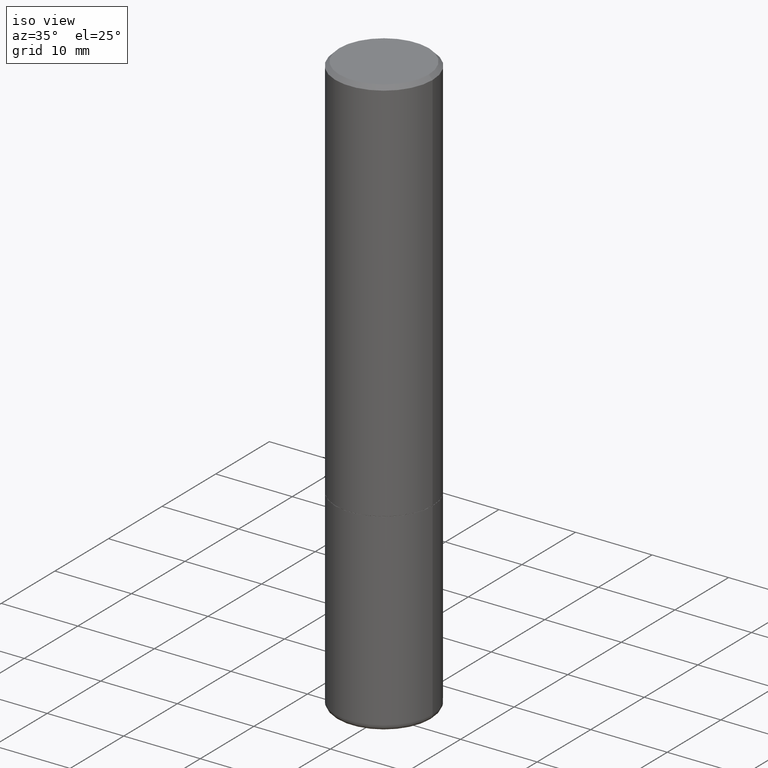
[diagram: clean part render]
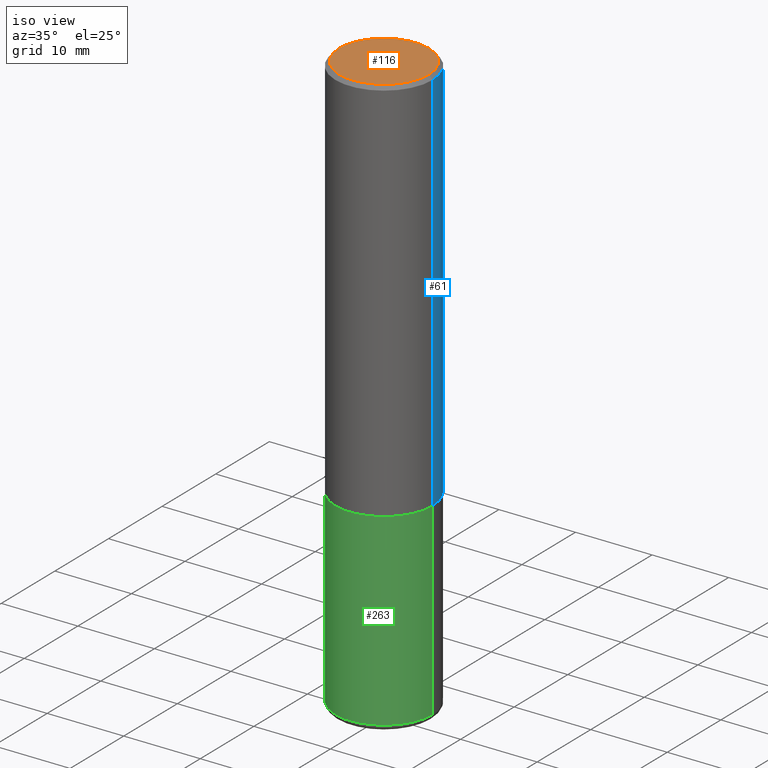
[diagram: same view with three faces highlighted in distinct colors, each labeled with its STEP entity id]
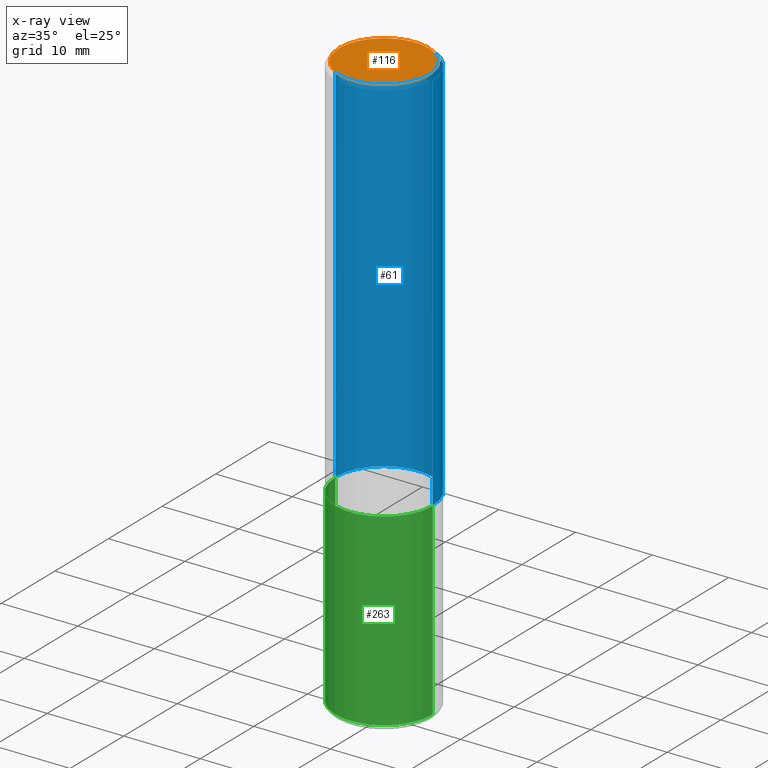
[diagram: x-ray of the same camera — body ghosted, the three highlighted faces saturated]
A machine part, iso view with three faces highlighted in distinct colors.
The next image is the same camera in x-ray (body ghosted, the three faces saturated) — at least one of them is partly hidden behind the body in this view.
Their STEP definitions:

[orange] entity #116 — the highlighted planar face has unit normal (0, -0, -1).
#11 = DIRECTION ( 'NONE',  ( -2.445468806185136597E-29, 3.491481338843145583E-15, 1.000000000000000000 ) ) ;
#14 = AXIS2_PLACEMENT_3D ( 'NONE', #366, #11, #243 ) ;
#18 = CARTESIAN_POINT ( 'NONE',  ( -0.2299999999999995381, 1.640996229256271139E-15, 4.268512490100296524E-16 ) ) ;
#24 = EDGE_CURVE ( 'NONE', #300, #229, #238, .T. ) ;
#98 = DIRECTION ( 'NONE',  ( -2.445468806185136597E-29, 3.491481338843145583E-15, 1.000000000000000000 ) ) ;
#111 = AXIS2_PLACEMENT_3D ( 'NONE', #128, #98, #250 ) ;
#116 = ADVANCED_FACE ( 'NONE', ( #316 ), #376, .F. ) ;
#125 = CARTESIAN_POINT ( 'NONE',  ( 1.606081415867837912E-15, 0.2299999999999995381, -5.896150834289013687E-16 ) ) ;
#128 = CARTESIAN_POINT ( 'NONE',  ( -1.043851414335219407E-44, 1.490343170380446839E-30, 4.268512490100409923E-16 ) ) ;
#170 = CARTESIAN_POINT ( 'NONE',  ( 0.2299999999999995381, -1.681434332853596842E-15, 4.268512490100525294E-16 ) ) ;
#185 = EDGE_CURVE ( 'NONE', #229, #300, #202, .T. ) ;
#192 = ORIENTED_EDGE ( 'NONE', *, *, #24, .T. ) ;
#197 = ORIENTED_EDGE ( 'NONE', *, *, #185, .T. ) ;
#202 = CIRCLE ( 'NONE', #111, 0.2299999999999995381 ) ;
#224 = DIRECTION ( 'NONE',  ( -1.000000000000000000, 6.982962677686265922E-15, -4.876176775795935793E-29 ) ) ;
#229 = VERTEX_POINT ( 'NONE', #18 ) ;
#238 = CIRCLE ( 'NONE', #14, 0.2299999999999995381 ) ;
#243 = DIRECTION ( 'NONE',  ( 1.000000000000000000, -6.982962677686266711E-15, 4.879110437680785527E-29 ) ) ;
#250 = DIRECTION ( 'NONE',  ( 1.000000000000000000, -6.982962677686266711E-15, 4.879110437680785527E-29 ) ) ;
#290 = AXIS2_PLACEMENT_3D ( 'NONE', #125, #375, #224 ) ;
#300 = VERTEX_POINT ( 'NONE', #170 ) ;
#316 = FACE_OUTER_BOUND ( 'NONE', #356, .T. ) ;
#356 = EDGE_LOOP ( 'NONE', ( #197, #192 ) ) ;
#366 = CARTESIAN_POINT ( 'NONE',  ( -1.043851414335219407E-44, 1.490343170380446839E-30, 4.268512490100409923E-16 ) ) ;
#375 = DIRECTION ( 'NONE',  ( 2.438088387897960049E-29, -3.491481338843145188E-15, -1.000000000000000000 ) ) ;
#376 = PLANE ( 'NONE',  #290 ) ;

[blue] entity #61 — the highlighted cylindrical surface (partial cylindrical patch) has radius 6.35 mm, axis along (-0, 0, 1).
#5 = EDGE_CURVE ( 'NONE', #39, #134, #55, .T. ) ;
#8 = LINE ( 'NONE', #270, #181 ) ;
#16 = DIRECTION ( 'NONE',  ( 1.000000000000000000, -6.982962677686268288E-15, 0.000000000000000000 ) ) ;
#25 = EDGE_CURVE ( 'NONE', #39, #113, #370, .T. ) ;
#39 = VERTEX_POINT ( 'NONE', #146 ) ;
#55 = CIRCLE ( 'NONE', #213, 0.2500000000000002220 ) ;
#61 = ADVANCED_FACE ( 'NONE', ( #400 ), #369, .T. ) ;
#73 = AXIS2_PLACEMENT_3D ( 'NONE', #120, #84, #338 ) ;
#84 = DIRECTION ( 'NONE',  ( -2.445468806185136597E-29, 3.491481338843145583E-15, 1.000000000000000000 ) ) ;
#85 = CARTESIAN_POINT ( 'NONE',  ( 4.888492143564088712E-29, -6.979471196347448158E-15, -1.999000000000000110 ) ) ;
#106 = ORIENTED_EDGE ( 'NONE', *, *, #241, .F. ) ;
#113 = VERTEX_POINT ( 'NONE', #180 ) ;
#120 = CARTESIAN_POINT ( 'NONE',  ( 0.000000000000000000, 0.000000000000000000, 0.000000000000000000 ) ) ;
#130 = CARTESIAN_POINT ( 'NONE',  ( 4.890937612370296805E-31, -6.982962677686323656E-17, -0.02000000000000009409 ) ) ;
#134 = VERTEX_POINT ( 'NONE', #410 ) ;
#136 = VECTOR ( 'NONE', #234, 39.37007874015748143 ) ;
#146 = CARTESIAN_POINT ( 'NONE',  ( 0.2500000000000002220, -8.725211865769017202E-15, -1.999000000000000110 ) ) ;
#153 = DIRECTION ( 'NONE',  ( 1.000000000000000000, -6.982962677686266711E-15, 0.000000000000000000 ) ) ;
#180 = CARTESIAN_POINT ( 'NONE',  ( 0.2499999999999999722, -1.784954126219746189E-15, -0.02000000000000009409 ) ) ;
#181 = VECTOR ( 'NONE', #392, 39.37007874015748143 ) ;
#213 = AXIS2_PLACEMENT_3D ( 'NONE', #85, #276, #16 ) ;
#227 = EDGE_LOOP ( 'NONE', ( #232, #262, #106, #394 ) ) ;
#232 = ORIENTED_EDGE ( 'NONE', *, *, #5, .T. ) ;
#234 = DIRECTION ( 'NONE',  ( -2.445468806185136877E-29, 3.491481338843145188E-15, 1.000000000000000000 ) ) ;
#241 = EDGE_CURVE ( 'NONE', #113, #324, #418, .T. ) ;
#262 = ORIENTED_EDGE ( 'NONE', *, *, #358, .T. ) ;
#270 = CARTESIAN_POINT ( 'NONE',  ( -0.2500000000000001110, 1.776356839400251254E-15, -1.229733772563727006E-29 ) ) ;
#276 = DIRECTION ( 'NONE',  ( -2.445468806185136597E-29, 3.491481338843145583E-15, 1.000000000000000000 ) ) ;
#278 = DIRECTION ( 'NONE',  ( -2.445468806185136597E-29, 3.491481338843145583E-15, 1.000000000000000000 ) ) ;
#295 = AXIS2_PLACEMENT_3D ( 'NONE', #130, #278, #153 ) ;
#324 = VERTEX_POINT ( 'NONE', #393 ) ;
#338 = DIRECTION ( 'NONE',  ( 1.000000000000000000, -6.982962677686266711E-15, 4.876176775795935793E-29 ) ) ;
#358 = EDGE_CURVE ( 'NONE', #134, #324, #8, .T. ) ;
#364 = CARTESIAN_POINT ( 'NONE',  ( 0.2500000000000001110, -1.745740669421567467E-15, 1.219044193948984509E-29 ) ) ;
#369 = CYLINDRICAL_SURFACE ( 'NONE', #73, 0.2500000000000001110 ) ;
#370 = LINE ( 'NONE', #364, #136 ) ;
#392 = DIRECTION ( 'NONE',  ( -2.445468806185136877E-29, 3.491481338843145188E-15, 1.000000000000000000 ) ) ;
#393 = CARTESIAN_POINT ( 'NONE',  ( -0.2499999999999999722, 1.675911042644703182E-15, -0.02000000000000009409 ) ) ;
#394 = ORIENTED_EDGE ( 'NONE', *, *, #25, .F. ) ;
#400 = FACE_OUTER_BOUND ( 'NONE', #227, .T. ) ;
#410 = CARTESIAN_POINT ( 'NONE',  ( -0.2500000000000002220, -1.748293572161903489E-15, -1.999000000000000110 ) ) ;
#418 = CIRCLE ( 'NONE', #295, 0.2499999999999999722 ) ;

[green] entity #263 — the highlighted cylindrical surface (partial cylindrical patch) has radius 6.35 mm, axis along (-0, 0, 1).
#3 = VERTEX_POINT ( 'NONE', #41 ) ;
#6 = AXIS2_PLACEMENT_3D ( 'NONE', #415, #68, #102 ) ;
#7 = CARTESIAN_POINT ( 'NONE',  ( 4.890937612370273754E-29, -6.982962677686291954E-15, -2.000000000000000444 ) ) ;
#19 = DIRECTION ( 'NONE',  ( -2.445468806185136877E-29, 3.491481338843145188E-15, 1.000000000000000000 ) ) ;
#30 = EDGE_CURVE ( 'NONE', #165, #3, #178, .T. ) ;
#38 = CYLINDRICAL_SURFACE ( 'NONE', #6, 0.2500000000000000000 ) ;
#41 = CARTESIAN_POINT ( 'NONE',  ( 0.2499999999999998612, -1.211544024578571124E-14, -2.970000000000000195 ) ) ;
#44 = EDGE_CURVE ( 'NONE', #390, #359, #142, .T. ) ;
#68 = DIRECTION ( 'NONE',  ( -2.445468806185136597E-29, 3.491481338843145583E-15, 1.000000000000000000 ) ) ;
#80 = CARTESIAN_POINT ( 'NONE',  ( 0.2500000000000000000, -8.728703347107858632E-15, -2.000000000000000444 ) ) ;
#81 = AXIS2_PLACEMENT_3D ( 'NONE', #7, #269, #206 ) ;
#83 = CARTESIAN_POINT ( 'NONE',  ( 7.263042354369856275E-29, -1.036969957636414298E-14, -2.970000000000000195 ) ) ;
#88 = DIRECTION ( 'NONE',  ( 1.000000000000000000, -6.982962677686269077E-15, 0.000000000000000000 ) ) ;
#102 = DIRECTION ( 'NONE',  ( 1.000000000000000000, -6.982962677686266711E-15, 4.876176775795935793E-29 ) ) ;
#104 = ORIENTED_EDGE ( 'NONE', *, *, #245, .F. ) ;
#115 = DIRECTION ( 'NONE',  ( -2.445468806185136877E-29, 3.491481338843145188E-15, 1.000000000000000000 ) ) ;
#142 = CIRCLE ( 'NONE', #81, 0.2500000000000000000 ) ;
#152 = AXIS2_PLACEMENT_3D ( 'NONE', #83, #372, #88 ) ;
#165 = VERTEX_POINT ( 'NONE', #287 ) ;
#178 = CIRCLE ( 'NONE', #152, 0.2500000000000000555 ) ;
#199 = ORIENTED_EDGE ( 'NONE', *, *, #30, .T. ) ;
#204 = CARTESIAN_POINT ( 'NONE',  ( -0.2500000000000000000, -6.899974287624967004E-15, -2.000000000000000444 ) ) ;
#206 = DIRECTION ( 'NONE',  ( 1.000000000000000000, -6.982962677686266711E-15, 0.000000000000000000 ) ) ;
#218 = CARTESIAN_POINT ( 'NONE',  ( -0.2500000000000000000, 1.776356839400250465E-15, -1.229733772563726445E-29 ) ) ;
#220 = VECTOR ( 'NONE', #19, 39.37007874015748143 ) ;
#245 = EDGE_CURVE ( 'NONE', #165, #390, #246, .T. ) ;
#246 = LINE ( 'NONE', #218, #220 ) ;
#254 = ORIENTED_EDGE ( 'NONE', *, *, #44, .F. ) ;
#263 = ADVANCED_FACE ( 'NONE', ( #329 ), #38, .T. ) ;
#269 = DIRECTION ( 'NONE',  ( -2.445468806185136597E-29, 3.491481338843145583E-15, 1.000000000000000000 ) ) ;
#280 = VECTOR ( 'NONE', #115, 39.37007874015748143 ) ;
#287 = CARTESIAN_POINT ( 'NONE',  ( -0.2499999999999998612, -8.593342736963892519E-15, -2.970000000000000195 ) ) ;
#329 = FACE_OUTER_BOUND ( 'NONE', #381, .T. ) ;
#343 = EDGE_CURVE ( 'NONE', #3, #359, #391, .T. ) ;
#359 = VERTEX_POINT ( 'NONE', #80 ) ;
#362 = ORIENTED_EDGE ( 'NONE', *, *, #343, .T. ) ;
#372 = DIRECTION ( 'NONE',  ( -2.445468806185136597E-29, 3.491481338843145583E-15, 1.000000000000000000 ) ) ;
#381 = EDGE_LOOP ( 'NONE', ( #104, #199, #362, #254 ) ) ;
#390 = VERTEX_POINT ( 'NONE', #204 ) ;
#391 = LINE ( 'NONE', #395, #280 ) ;
#395 = CARTESIAN_POINT ( 'NONE',  ( 0.2500000000000000000, -1.745740669421566678E-15, 1.219044193948983948E-29 ) ) ;
#415 = CARTESIAN_POINT ( 'NONE',  ( 0.000000000000000000, 0.000000000000000000, 0.000000000000000000 ) ) ;